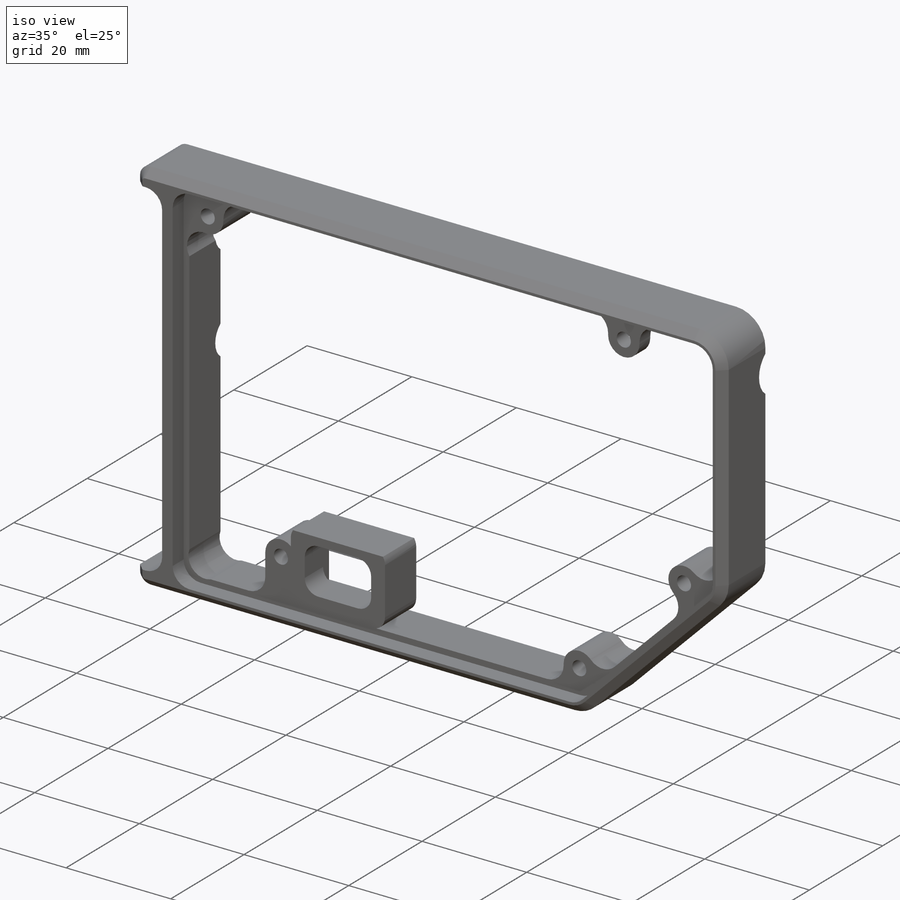
[diagram: iso view]
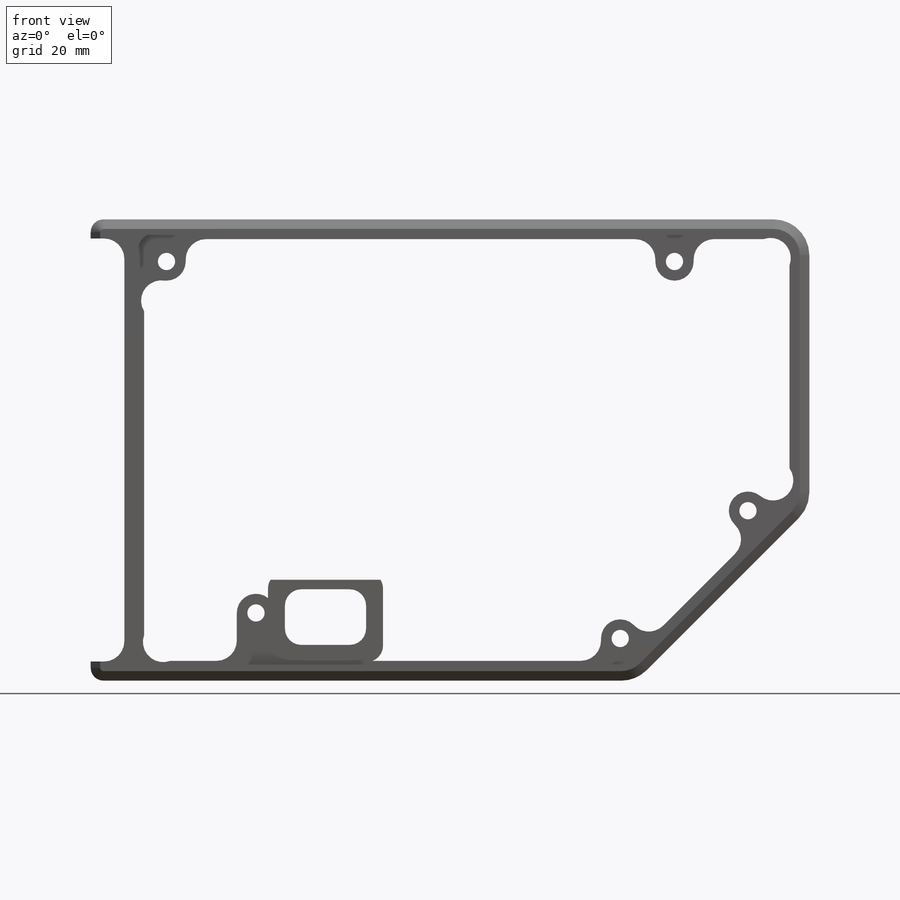
[diagram: front view]
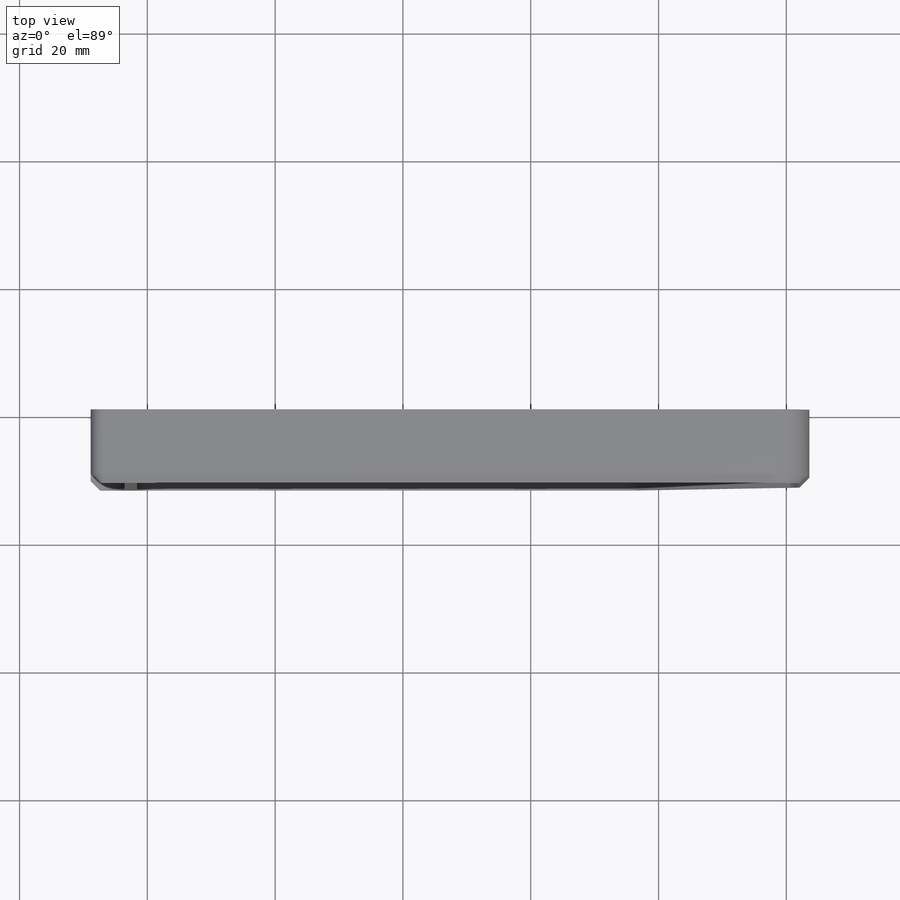
[diagram: top view]
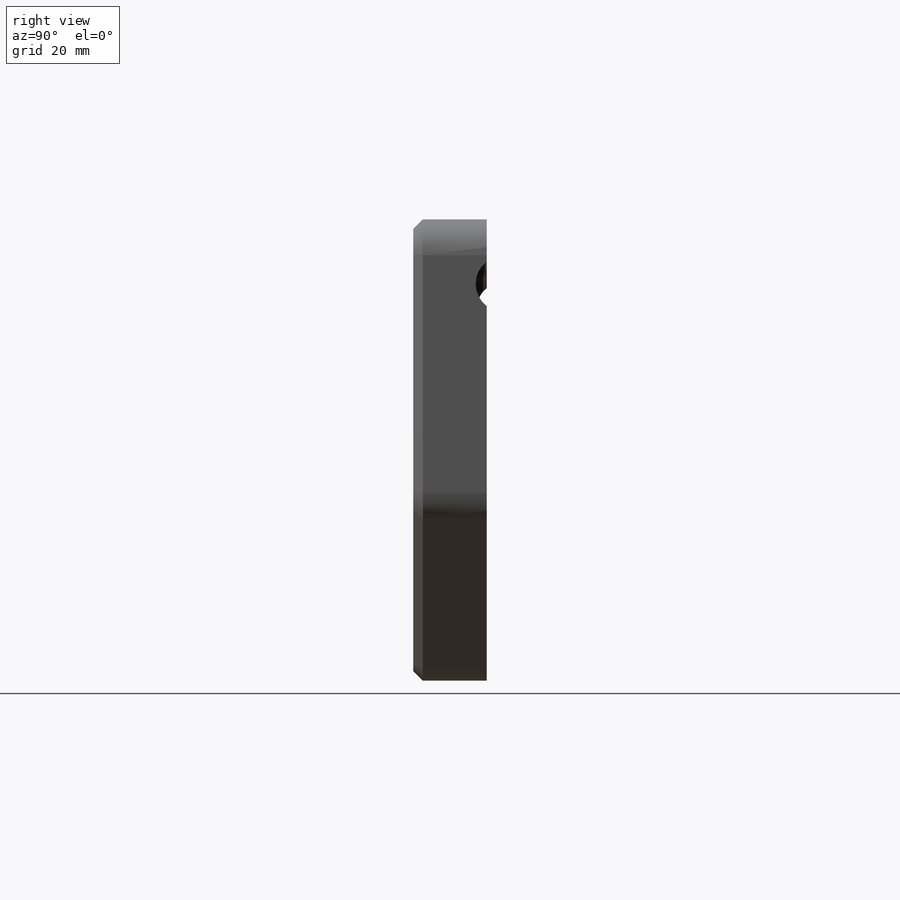
[diagram: right view]
SOLIDWORKS PART (.sldprt)
format: sldprt  version: not decoded by parser v0  size: 819,712 bytes
history: native  units: mm
features: sketch x15, cut_extrude x10, extrude x5, chamfer x4, fillet x2, material x1 (+11 scaffold rows collapsed)
feature tree (48):
  scaffold x11  (default folders/planes/origin — collapsed)
  material  "Material <not specified>"
  sketch  "Sketch1"  dims[D3=3.175mm D4=~5.361321mm D1=0.0mm D2=0.0mm]
  extrude  "Boss-Extrude1"  Depth=8.5mm
  sketch  "Sketch20"
  cut_extrude  "Cut-Extrude4"  [1 undecoded]
  sketch  "Sketch3"
  cut_extrude  "Cut-Extrude5"  [1 undecoded]
  sketch  "Sketch4"
  cut_extrude  "Cut-Extrude1"  [1 undecoded]
  sketch  "Sketch6"  dims[c1.D1=10.0mm c1.D2=2.0mm c1.D3=2.0mm c1.D4=2.0mm c1.D5=2.0mm c1.D6=2.0mm c1.D7=2.0mm c1.D8=2.0mm c1.D9=2.0mm c2.D1=3.25mm c2.D3=3.175mm c2.D4=3.175mm c3.D1=~79.490486mm c3.D2=2.0mm c3.D3=2.0mm c3.D4=2.0mm c3.D5=2.0mm c3.D6=2.0mm c4.D1=0.0mm c4.D2=2.0mm]
  extrude  "Boss-Extrude3"  Depth=3mm
  sketch  "Sketch21"
  cut_extrude  "Cut-Extrude6"  Depth=12mm
  sketch  "Sketch22"
  cut_extrude  "Cut-Extrude7"  Depth=12mm
  sketch  "Sketch23"
  cut_extrude  "Cut-Extrude8"  Depth=12mm
  sketch  "Sketch24"
  cut_extrude  "Cut-Extrude9"  [1 undecoded]
  sketch  "Sketch25"  dims[D1=0.0mm D2=1.5mm]
  extrude  "Boss-Extrude4"  [1 undecoded]
  sketch  "Sketch26"  dims[c1.D2=11.3mm c1.D3=~15.845265mm c1.D4=15.3mm c2.D3=15.3mm c2.D1=0.0mm c2.D2=0.0mm]
  extrude  "Boss-Extrude5"  [1 undecoded]
  sketch  "Sketch30"
  cut_extrude  "Cut-Extrude12"  Depth=10mm
  sketch  "Sketch27"  dims[D1=1.5mm]
  cut_extrude  "Cut-Extrude10"  Depth=12mm
  chamfer  "Chamfer4"  Distance=1.5mm Angle=45deg
  sketch  "Sketch28"  dims[D8=1.5mm D10=3.0mm D9=4.0mm D1=0.0mm D2=0.0mm D3=0.0mm D4=0.0mm D5=0.0mm D6=0.0mm D7=0.0mm]
  extrude  "Boss-Extrude6"  Depth=3mm
  sketch  "Sketch29"
  cut_extrude  "Cut-Extrude11"  Depth=1.5mm
  chamfer  "Chamfer1"  Distance=1.5mm Angle=45deg
  chamfer  "Chamfer2"  Distance=1mm Angle=45deg
  chamfer  "Chamfer3"  Distance=2mm Angle=45deg
  fillet  "Fillet1"  Radius=2mm
  fillet  "Fillet2"  Radius=2mm
decode coverage: 21 of 36 modeling features carry decoded parameters
note: ~ marks probable driven/reference dimensions
note: 6 parameter values undecoded
summary: no parameter record found for 6 features
note: suppression state not decoded; provenance and decode notes live in map.json
